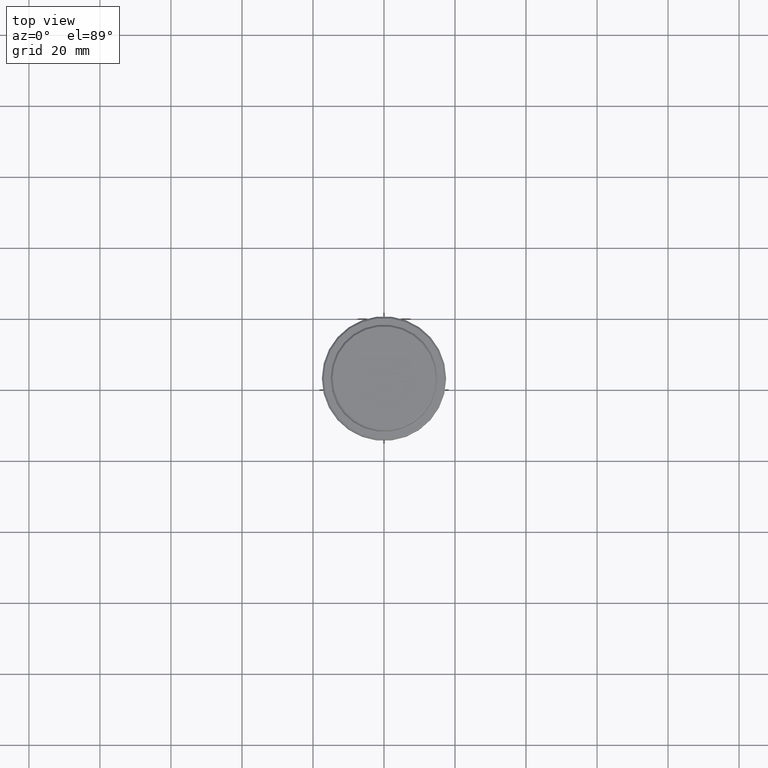
[diagram: clean part render]
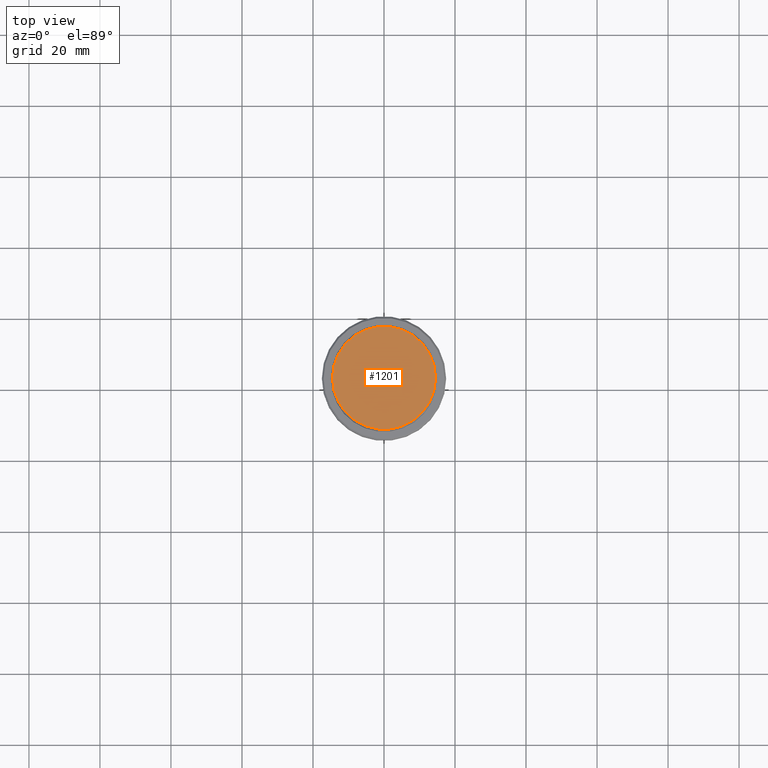
[diagram: same view with one face highlighted and labeled with its STEP entity id]
A machine part, top view. The second image highlights one B-rep face of the part: STEP entity #1201.
In plain terms, the highlighted planar face has unit normal (0, -0, 1).
Its self-contained STEP definition (entity closure, byte-faithful):
#114 = DIRECTION ( 'NONE',  ( 1.000000000000000000, 0.000000000000000000, 0.000000000000000000 ) ) ;
#336 = DIRECTION ( 'NONE',  ( 1.000000000000000000, 0.000000000000000000, 0.000000000000000000 ) ) ;
#362 = CARTESIAN_POINT ( 'NONE',  ( 0.000000000000000000, 0.000000000000000000, 0.000000000000000000 ) ) ;
#376 = EDGE_CURVE ( 'NONE', #1157, #1391, #999, .T. ) ;
#393 = CIRCLE ( 'NONE', #1095, 14.49999999999998401 ) ;
#411 = EDGE_LOOP ( 'NONE', ( #551, #1154 ) ) ;
#551 = ORIENTED_EDGE ( 'NONE', *, *, #1103, .T. ) ;
#592 = AXIS2_PLACEMENT_3D ( 'NONE', #362, #1135, #699 ) ;
#699 = DIRECTION ( 'NONE',  ( 1.000000000000000000, 0.000000000000000000, 0.000000000000000000 ) ) ;
#764 = CARTESIAN_POINT ( 'NONE',  ( 0.000000000000000000, 0.000000000000000000, 0.000000000000000000 ) ) ;
#859 = PLANE ( 'NONE',  #1223 ) ;
#882 = CARTESIAN_POINT ( 'NONE',  ( 0.000000000000000000, 0.000000000000000000, 0.000000000000000000 ) ) ;
#984 = FACE_OUTER_BOUND ( 'NONE', #411, .T. ) ;
#999 = CIRCLE ( 'NONE', #592, 14.49999999999998401 ) ;
#1046 = CARTESIAN_POINT ( 'NONE',  ( -14.49999999999998401, 0.000000000000000000, 0.000000000000000000 ) ) ;
#1090 = DIRECTION ( 'NONE',  ( 0.000000000000000000, -0.000000000000000000, 1.000000000000000000 ) ) ;
#1095 = AXIS2_PLACEMENT_3D ( 'NONE', #764, #1099, #336 ) ;
#1099 = DIRECTION ( 'NONE',  ( -0.000000000000000000, -0.000000000000000000, 1.000000000000000000 ) ) ;
#1103 = EDGE_CURVE ( 'NONE', #1391, #1157, #393, .T. ) ;
#1135 = DIRECTION ( 'NONE',  ( -0.000000000000000000, -0.000000000000000000, 1.000000000000000000 ) ) ;
#1154 = ORIENTED_EDGE ( 'NONE', *, *, #376, .T. ) ;
#1157 = VERTEX_POINT ( 'NONE', #1416 ) ;
#1201 = ADVANCED_FACE ( 'NONE', ( #984 ), #859, .T. ) ;
#1223 = AXIS2_PLACEMENT_3D ( 'NONE', #882, #1090, #114 ) ;
#1391 = VERTEX_POINT ( 'NONE', #1046 ) ;
#1416 = CARTESIAN_POINT ( 'NONE',  ( 14.49999999999998401, 1.806354028742345013E-15, 0.000000000000000000 ) ) ;